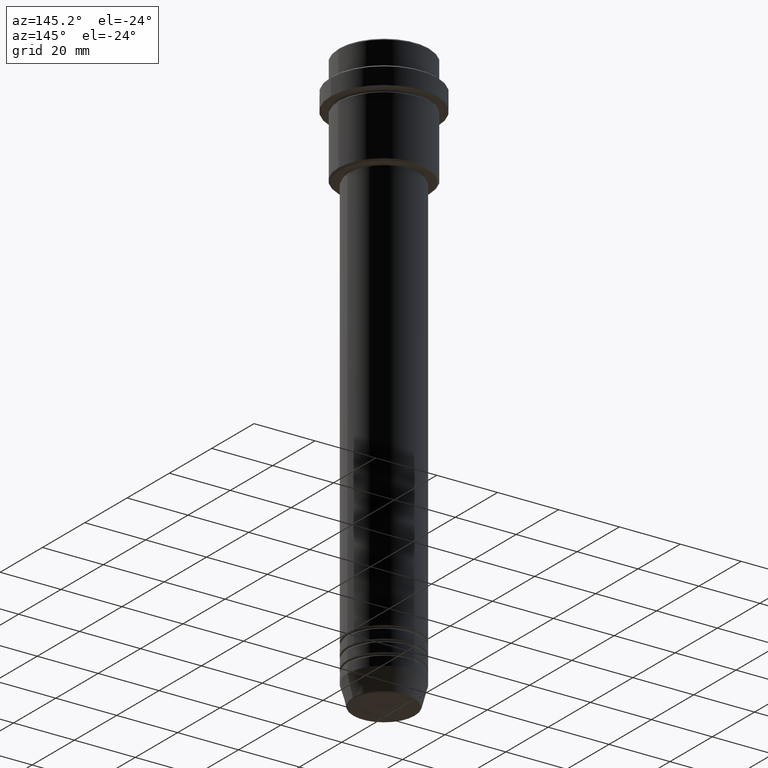
[diagram: clean part render]
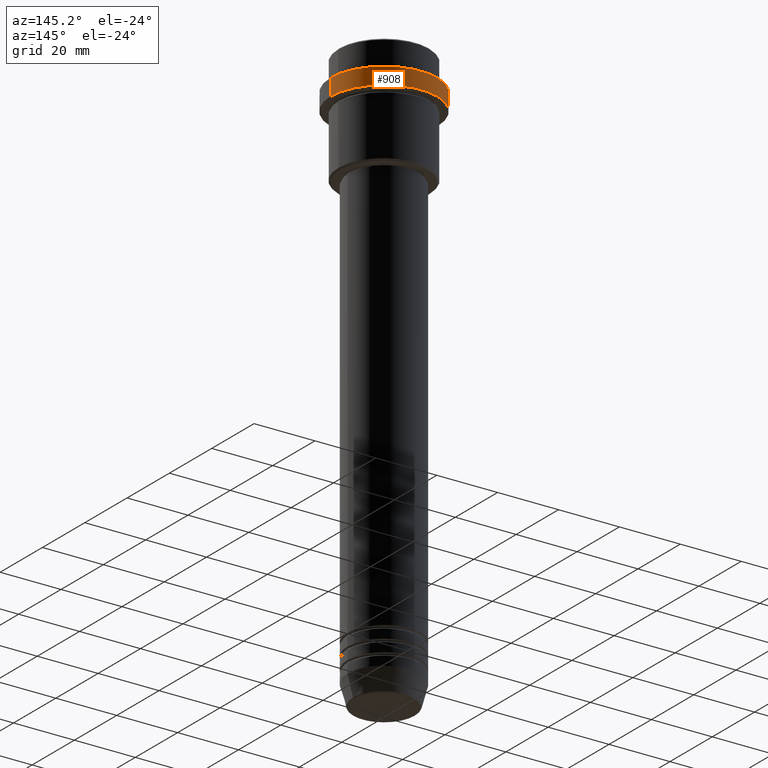
[diagram: same view with one face highlighted and labeled with its STEP entity id]
A machine part, auxiliary view. The second image highlights one B-rep face of the part: STEP entity #908.
In plain terms, the highlighted cylindrical surface (partial cylindrical patch) has radius 17.5 mm, axis along (-0, -0, 1).
Its self-contained STEP definition (entity closure, byte-faithful):
#34 = CARTESIAN_POINT ( 'NONE',  ( 0.000000000000000000, 0.000000000000000000, -15.00000000000000178 ) ) ;
#52 = CIRCLE ( 'NONE', #353, 17.50000000000000000 ) ;
#54 = CARTESIAN_POINT ( 'NONE',  ( -17.50000000000000000, 2.143131898507868248E-15, -15.00000000000000178 ) ) ;
#79 = EDGE_CURVE ( 'NONE', #98, #859, #52, .T. ) ;
#98 = VERTEX_POINT ( 'NONE', #909 ) ;
#111 = EDGE_CURVE ( 'NONE', #859, #538, #887, .T. ) ;
#156 = EDGE_LOOP ( 'NONE', ( #274, #762, #466, #895 ) ) ;
#222 = DIRECTION ( 'NONE',  ( -0.000000000000000000, -0.000000000000000000, 1.000000000000000000 ) ) ;
#266 = DIRECTION ( 'NONE',  ( 1.000000000000000000, 0.000000000000000000, 0.000000000000000000 ) ) ;
#274 = ORIENTED_EDGE ( 'NONE', *, *, #79, .T. ) ;
#290 = DIRECTION ( 'NONE',  ( 1.000000000000000000, 0.000000000000000000, 0.000000000000000000 ) ) ;
#341 = DIRECTION ( 'NONE',  ( 1.000000000000000000, 0.000000000000000000, 0.000000000000000000 ) ) ;
#353 = AXIS2_PLACEMENT_3D ( 'NONE', #34, #565, #341 ) ;
#379 = AXIS2_PLACEMENT_3D ( 'NONE', #825, #1239, #266 ) ;
#441 = DIRECTION ( 'NONE',  ( -0.000000000000000000, -0.000000000000000000, 1.000000000000000000 ) ) ;
#466 = ORIENTED_EDGE ( 'NONE', *, *, #595, .T. ) ;
#538 = VERTEX_POINT ( 'NONE', #836 ) ;
#541 = LINE ( 'NONE', #1218, #636 ) ;
#565 = DIRECTION ( 'NONE',  ( -0.000000000000000000, -0.000000000000000000, 1.000000000000000000 ) ) ;
#595 = EDGE_CURVE ( 'NONE', #538, #797, #987, .T. ) ;
#636 = VECTOR ( 'NONE', #441, 1000.000000000000000 ) ;
#762 = ORIENTED_EDGE ( 'NONE', *, *, #111, .T. ) ;
#788 = VECTOR ( 'NONE', #222, 1000.000000000000000 ) ;
#797 = VERTEX_POINT ( 'NONE', #1102 ) ;
#825 = CARTESIAN_POINT ( 'NONE',  ( 0.000000000000000000, 0.000000000000000000, -9.500000000000001776 ) ) ;
#836 = CARTESIAN_POINT ( 'NONE',  ( -17.50000000000000000, 2.143131898507868248E-15, -9.500000000000001776 ) ) ;
#855 = CARTESIAN_POINT ( 'NONE',  ( 0.000000000000000000, 0.000000000000000000, 0.000000000000000000 ) ) ;
#859 = VERTEX_POINT ( 'NONE', #54 ) ;
#887 = LINE ( 'NONE', #991, #788 ) ;
#895 = ORIENTED_EDGE ( 'NONE', *, *, #1029, .F. ) ;
#908 = ADVANCED_FACE ( 'NONE', ( #1069 ), #1397, .T. ) ;
#909 = CARTESIAN_POINT ( 'NONE',  ( 17.50000000000000000, 0.000000000000000000, -15.00000000000000178 ) ) ;
#987 = CIRCLE ( 'NONE', #379, 17.50000000000000000 ) ;
#991 = CARTESIAN_POINT ( 'NONE',  ( -17.50000000000000000, 2.143131898507868248E-15, 0.000000000000000000 ) ) ;
#1029 = EDGE_CURVE ( 'NONE', #98, #797, #541, .T. ) ;
#1069 = FACE_OUTER_BOUND ( 'NONE', #156, .T. ) ;
#1076 = DIRECTION ( 'NONE',  ( -0.000000000000000000, -0.000000000000000000, 1.000000000000000000 ) ) ;
#1102 = CARTESIAN_POINT ( 'NONE',  ( 17.50000000000000000, 0.000000000000000000, -9.500000000000001776 ) ) ;
#1218 = CARTESIAN_POINT ( 'NONE',  ( 17.50000000000000000, 0.000000000000000000, 0.000000000000000000 ) ) ;
#1239 = DIRECTION ( 'NONE',  ( 0.000000000000000000, 0.000000000000000000, -1.000000000000000000 ) ) ;
#1389 = AXIS2_PLACEMENT_3D ( 'NONE', #855, #1076, #290 ) ;
#1397 = CYLINDRICAL_SURFACE ( 'NONE', #1389, 17.50000000000000000 ) ;